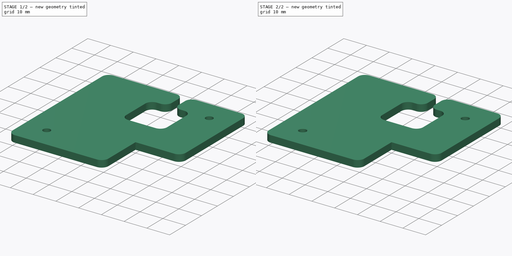
[diagram: build sequence overview — one tinted view per stage of 2, left to right]
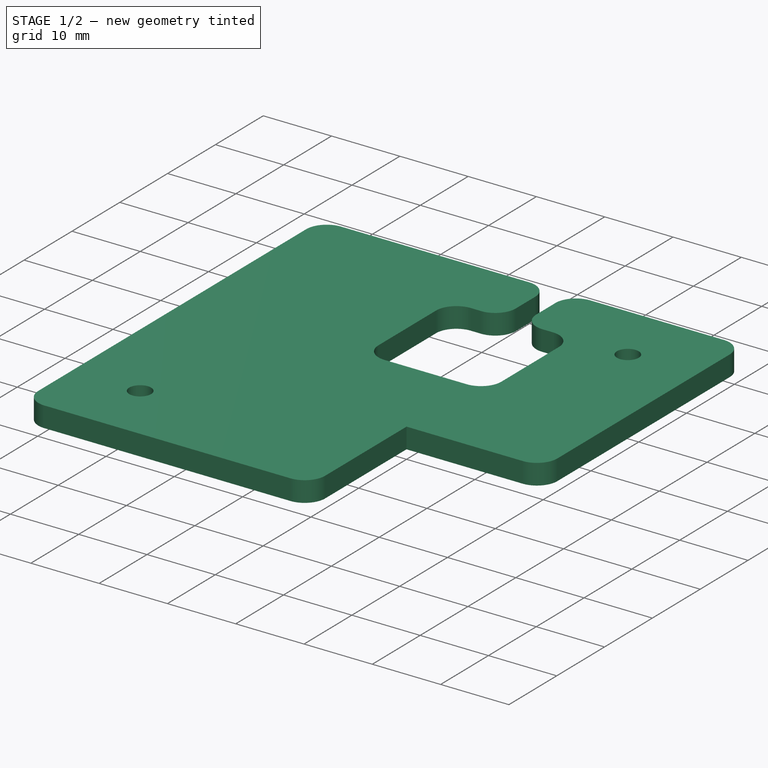
[diagram: stage 1 of 2 — iso view after this stage's code; geometry added in this stage tinted green]
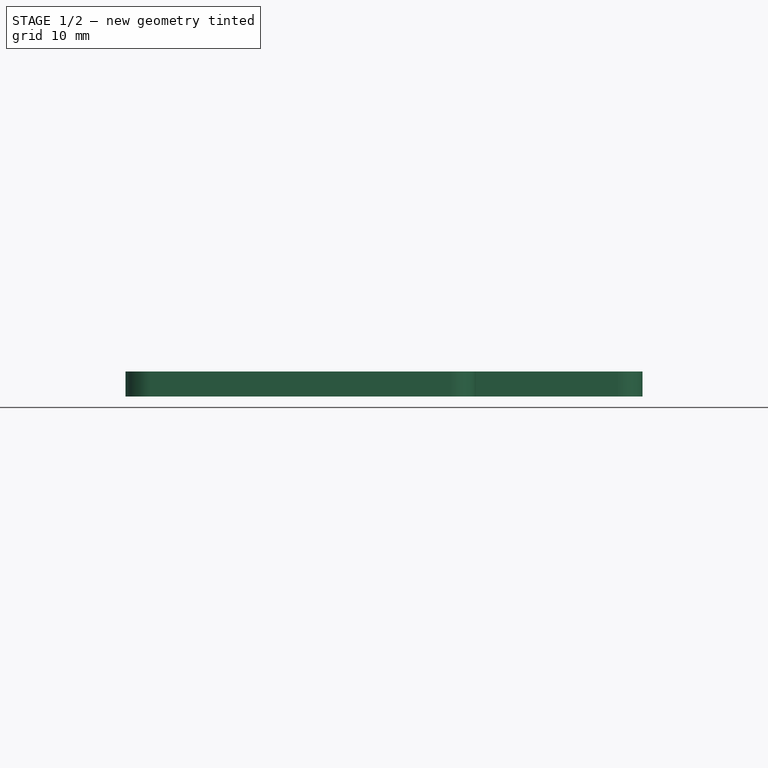
[diagram: stage 1 of 2 — front view after this stage's code; geometry added in this stage tinted green]
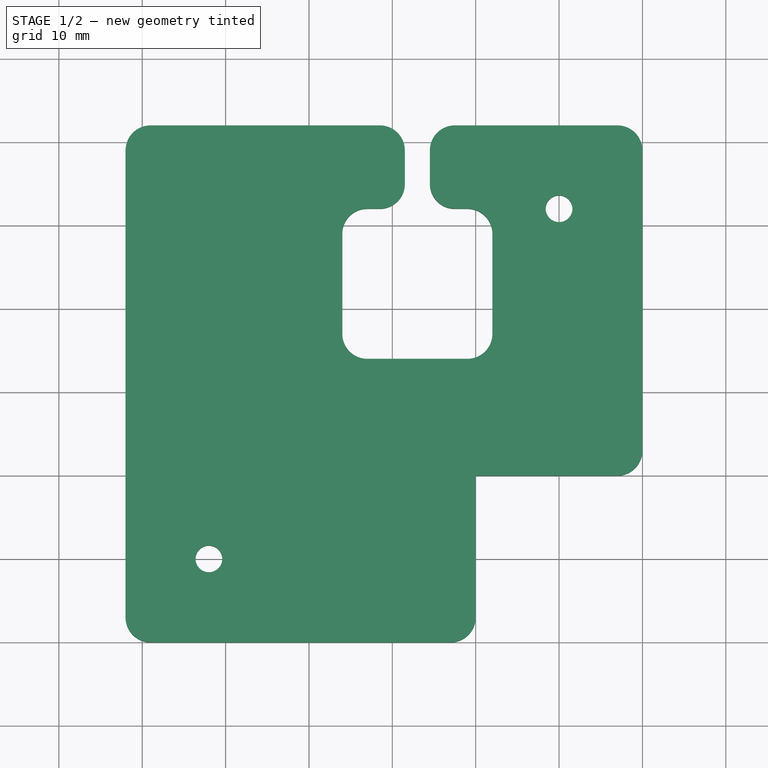
[diagram: stage 1 of 2 — top view after this stage's code; geometry added in this stage tinted green]
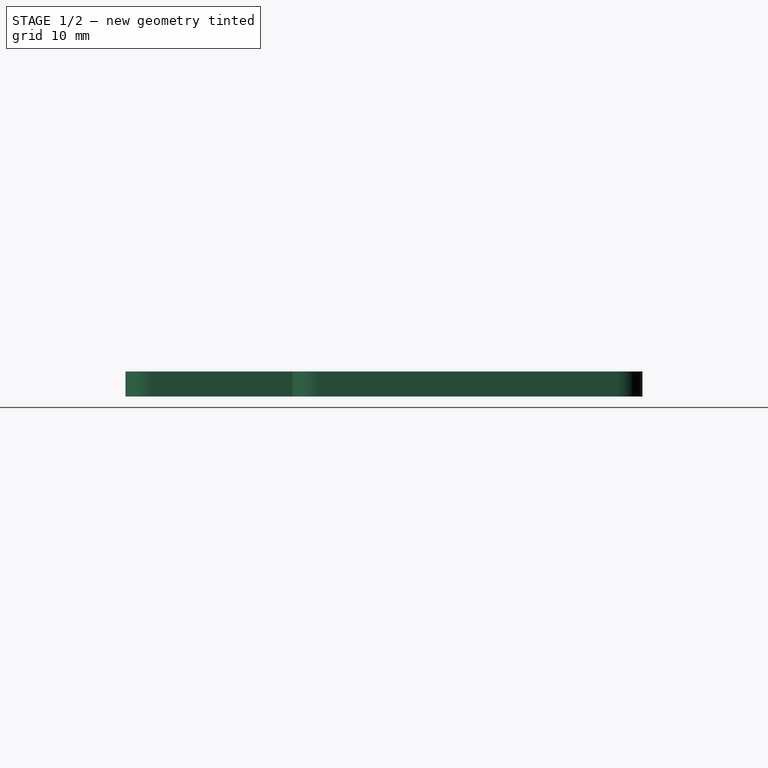
[diagram: stage 1 of 2 — right view after this stage's code; geometry added in this stage tinted green]
FCSTD DOCUMENT  (FreeCAD 0.22R38314 (Git))
Label: Voron_Z_Cover
License: All rights reserved
LicenseURL: https://en.wikipedia.org/wiki/All_rights_reserved
objects: Sketcher::SketchObject×1, PartDesign::Pad×1, PartDesign::Fillet×1, PartDesign::Chamfer×1, PartDesign::Body×1
note: 11 computed .brp shape members not serialized (recipe doc carries the construction recipe); baked Part::Feature solids carry a one-line shape summary decoded from their .brp

FEATURE [Sketcher::SketchObject] Sketch
  AttachmentSupport = -> [XY_Plane]
  FullyConstrained = true
  MapMode = 5
  sketch-geometry (16):
    g0: LineSegment StartX=0 StartY=0 StartZ=0 EndX=0 EndY=-20 EndZ=0
    g1: LineSegment StartX=0 StartY=-20 StartZ=0 EndX=-42 EndY=-20 EndZ=0
    g2: LineSegment StartX=-42 StartY=-20 StartZ=0 EndX=-42 EndY=42 EndZ=0
    g3: LineSegment StartX=20 StartY=42 StartZ=0 EndX=20 EndY=0 EndZ=0
    g4: LineSegment StartX=20 StartY=0 StartZ=0 EndX=0 EndY=0 EndZ=0
    g5: LineSegment StartX=-16 StartY=32 StartZ=0 EndX=-16 EndY=14 EndZ=0
    g6: LineSegment StartX=-16 StartY=14 StartZ=0 EndX=2 EndY=14 EndZ=0
    g7: LineSegment StartX=2 StartY=14 StartZ=0 EndX=2 EndY=32 EndZ=0
    g8: LineSegment StartX=-16 StartY=32 StartZ=0 EndX=-8.5 EndY=32 EndZ=0
    g9: LineSegment StartX=2 StartY=32 StartZ=0 EndX=-5.5 EndY=32 EndZ=0
    g10: LineSegment StartX=-5.5 StartY=32 StartZ=0 EndX=-5.5 EndY=42 EndZ=0
    g11: LineSegment StartX=-42 StartY=42 StartZ=0 EndX=-8.5 EndY=42 EndZ=0
    g12: LineSegment StartX=-8.5 StartY=42 StartZ=0 EndX=-8.5 EndY=32 EndZ=0
    g13: LineSegment StartX=-5.5 StartY=42 StartZ=0 EndX=20 EndY=42 EndZ=0
    g14: Circle CenterX=10 CenterY=32 CenterZ=0 NormalX=0 NormalY=0 NormalZ=1 AngleXU=0 Radius=1.6
    g15: Circle CenterX=-32 CenterY=-10 CenterZ=0 NormalX=0 NormalY=0 NormalZ=1 AngleXU=0 Radius=1.6
  constraints (47):
    c: Coincident(g-1,g0)
    c: PointOnObject(g0,g-2)
    c: Coincident(g0,g1)
    c: Horizontal(g1)
    c: Coincident(g1,g2)
    c: Vertical(g2)
    c: PointOnObject(g3,g-1)
    c: Vertical(g3)
    c: Coincident(g3,g4)
    c: Coincident(g4,g0)
    c: DistanceY(g0,g0) = 20
    c: DistanceX(g4,g4) = 20
    c: DistanceY(g2,g2) = 62
    c: DistanceX(g2,g3) = 62
    c: Coincident(g5,g6)
    c: Coincident(g6,g7)
    c: Vertical(g5)
    c: Vertical(g7)
    c: Horizontal(g6)
    c: Distance(g3,g7) = 18
    c: Distance(g7,g5) = 18
    c: Distance(g7,g6) = 18
    c: Coincident(g8,g5)
    c: Horizontal(g8)
    c: Coincident(g9,g7)
    c: Horizontal(g9)
    c: Coincident(g10,g9)
    c: Vertical(g10)
    c: Coincident(g11,g2)
    c: Horizontal(g11)
    c: Coincident(g12,g11)
    c: Coincident(g12,g8)
    c: Vertical(g12)
    c: Coincident(g13,g10)
    c: Coincident(g13,g3)
    c: Horizontal(g13)
    c: Distance(g12,g10) = 3
    c: Equal(g8,g9)
    c: Distance(g11,g8) = 10
    c: Horizontal(g9,g8)
    c: Horizontal(g10,g11)
    c: Diameter(g15) = 3.2
    c: Equal(g14,g15)
    c: Distance(g15,g1) = 10
    c: Distance(g15,g2) = 10
    c: Distance(g14,g13) = 10
    c: Distance(g14,g3) = 10
FEATURE [PartDesign::Pad] Pad
  Direction = (0,0,1)
  Length = 3
  Length2 = 10
  Profile = -> Sketch
  ReferenceAxis = -> Sketch [N_Axis]
  Refine = true
  Suppressed = false
  Type = 0
FEATURE [PartDesign::Fillet] Fillet
  Base = -> Pad [Edge29,Edge20,Edge26,Edge32,Edge17,Edge11,Edge14,Edge8,Edge38,Edge1,Edge2,Edge5,Edge35]
  BaseFeature = -> Pad
  Radius = 3
  Refine = true
  SupportTransform = false
  Suppressed = false
  UseAllEdges = false
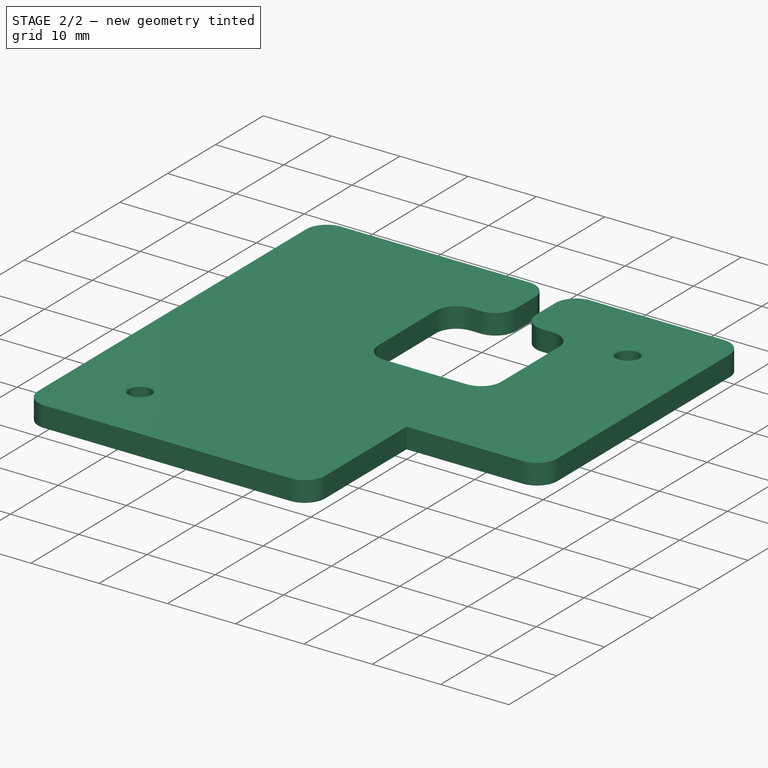
[diagram: stage 2 of 2 — iso view after this stage's code; geometry added in this stage tinted green]
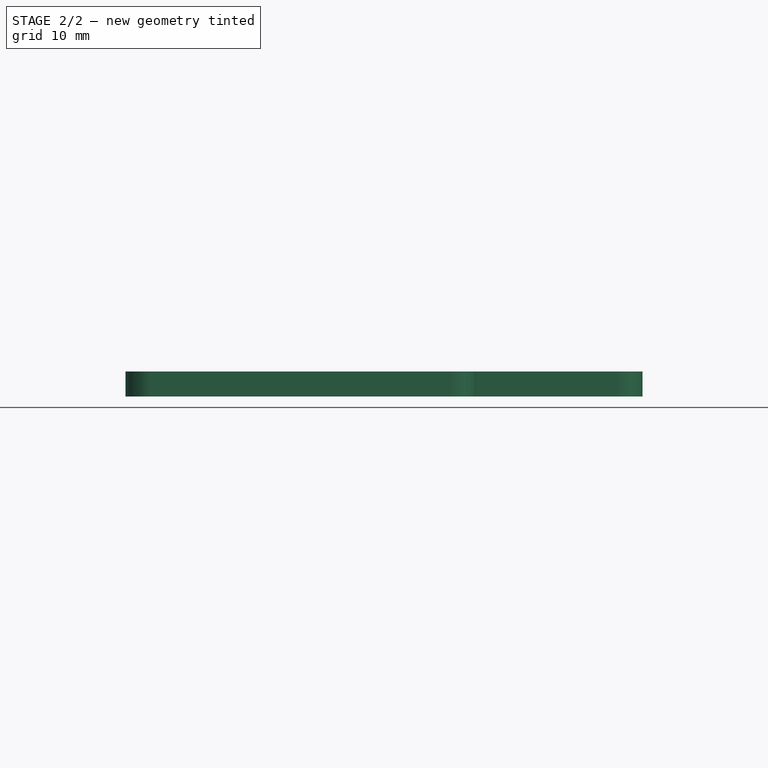
[diagram: stage 2 of 2 — front view after this stage's code; geometry added in this stage tinted green]
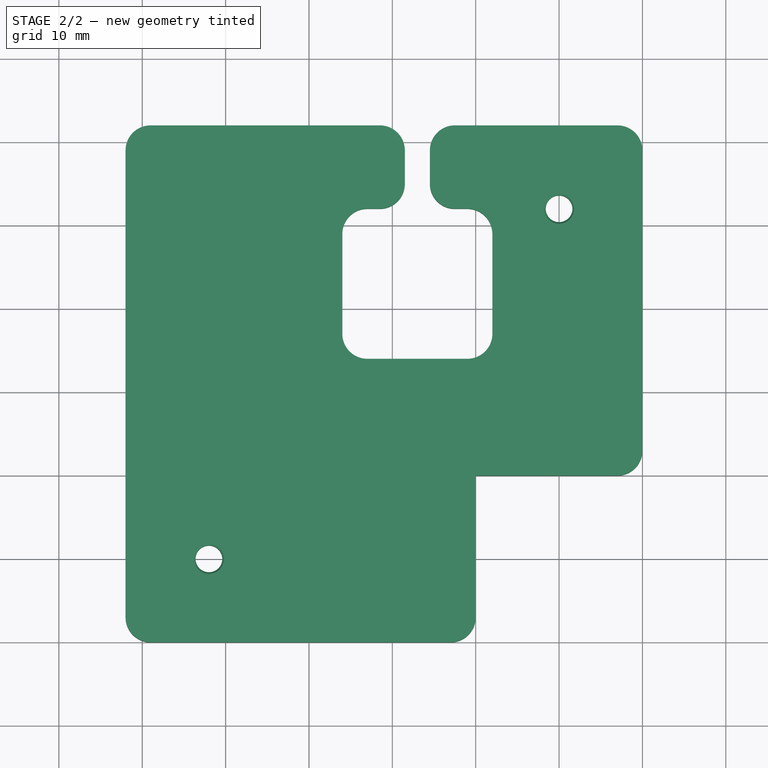
[diagram: stage 2 of 2 — top view after this stage's code; geometry added in this stage tinted green]
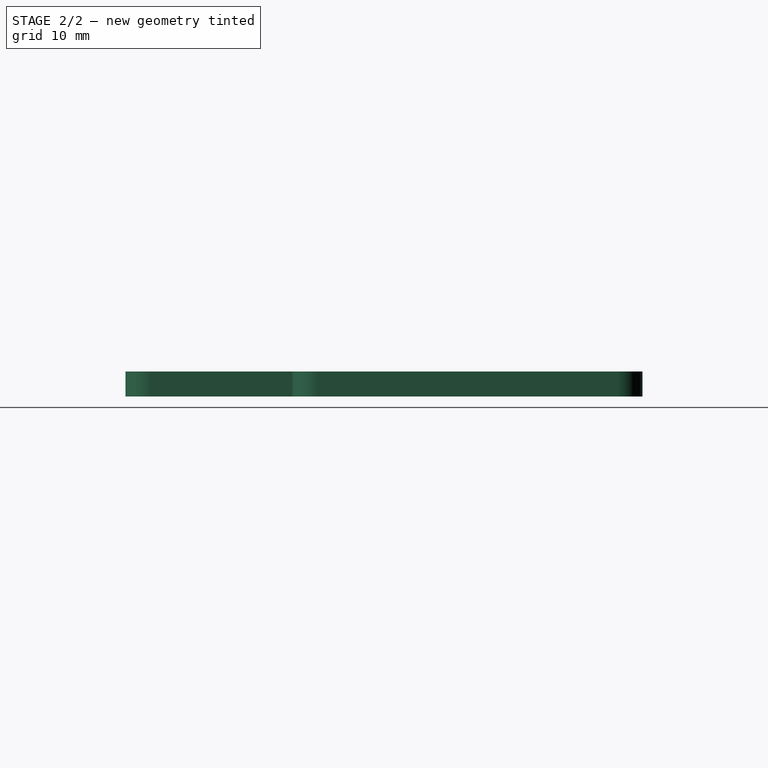
[diagram: stage 2 of 2 — right view after this stage's code; geometry added in this stage tinted green]
FEATURE [PartDesign::Chamfer] Chamfer
  Angle = 45
  Base = -> Fillet [Edge31,Edge32,Edge61,Edge62]
  BaseFeature = -> Fillet
  ChamferType = 0
  FlipDirection = false
  Refine = true
  Size = 0.2
  Size2 = 1
  SupportTransform = false
  Suppressed = false
  UseAllEdges = false
FEATURE [PartDesign::Body] Body
  AllowCompound = false
  Group = -> [Sketch,Pad,Fillet,Chamfer]
  Origin = -> Origin
  Tip = -> Chamfer
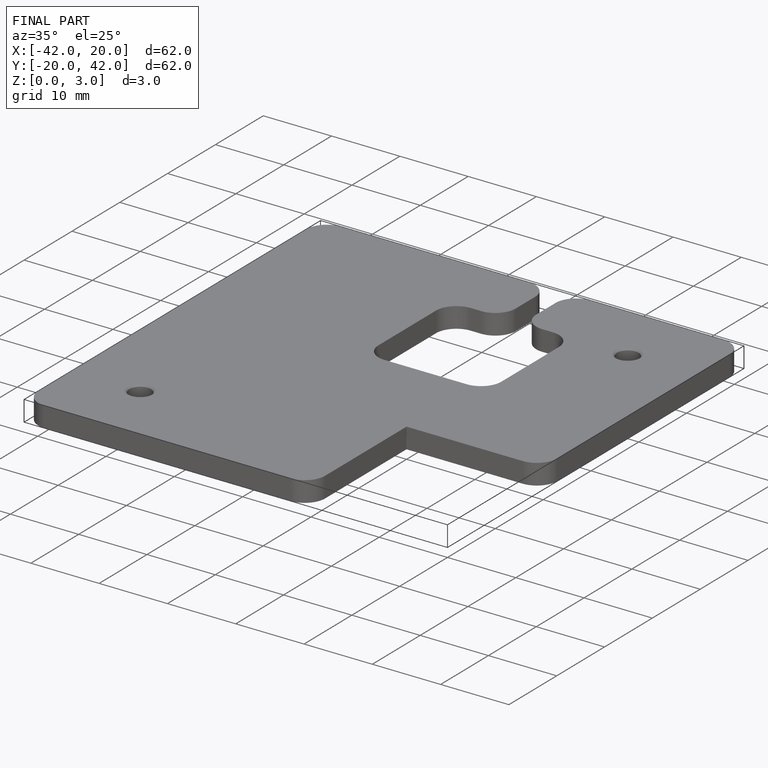
[diagram: finished part — iso view with bounding-box wireframe]
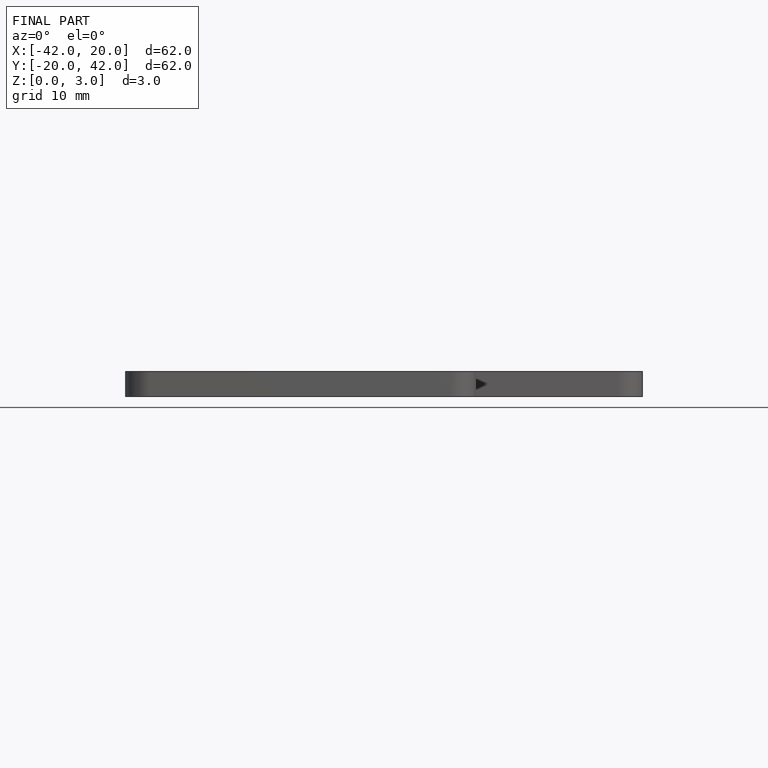
[diagram: finished part — front view with bounding-box wireframe]
